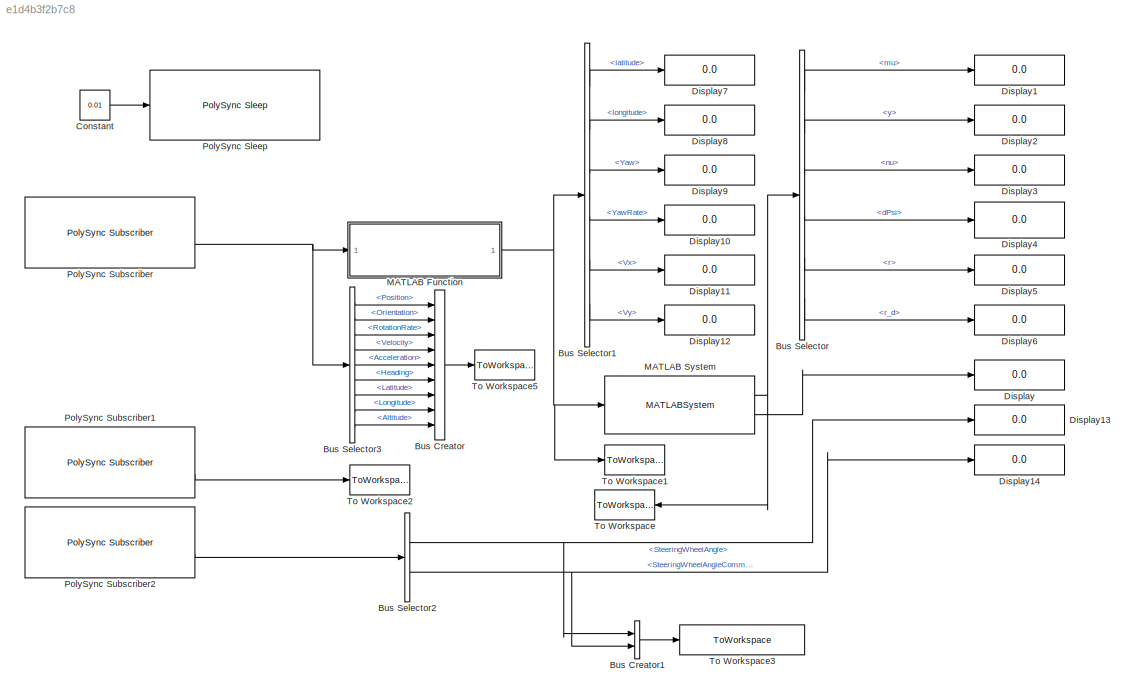
MODEL slx_e1d4b3f2b7c8
KIND model
CONFIG AbsTol = auto
CONFIG EnableMultiTasking = off
CONFIG FixedStep = 0.01
CONFIG MaxStep = auto
CONFIG MinStep = auto
CONFIG PostLoadFcn = bus_definitions;
CONFIG RelTol = 1e-3
CONFIG SampleTimeConstraint = Unconstrained
CONFIG Solver = FixedStepDiscrete
CONFIG SolverName = FixedStepDiscrete
CONFIG StartTime = 0.0
CONFIG StopFcn = save(['data/run-', num2str(now), '.mat'], 'gpsdata', 'rawdata', 'lk_acc_state', 'ba_message', 'steering_report')
CONFIG StopTime = 300
BLOCK [BusCreator] Bus Creator
  DisplayOption = bar
  InheritFromInputs = on
  Inputs = 9
  Ports = [9, 1]
BLOCK [BusCreator] Bus Creator1
  DisplayOption = bar
  InheritFromInputs = on
  Inputs = 2
  Ports = [2, 1]
BLOCK [BusSelector] Bus Selector
  OutputAsBus = off
  OutputSignals = mu,y,nu,dPsi,r,r_d
  Ports = [1, 6]
BLOCK [BusSelector] Bus Selector1
  OutputAsBus = off
  OutputSignals = latitude,longitude,Yaw,YawRate,Vx,Vy
  Ports = [1, 6]
BLOCK [BusSelector] Bus Selector2
  OutputAsBus = off
  OutputSignals = SteeringWheelAngle,SteeringWheelAngleCommand
  Ports = [1, 2]
BLOCK [BusSelector] Bus Selector3
  OutputAsBus = off
  OutputSignals = Position,Orientation,RotationRate,Velocity,Acceleration,Heading,Latitude,Longitude,Altitude
  Ports = [1, 9]
BLOCK [Constant] Constant
  Value = 0.01
BLOCK [Display] Display
  Decimation = 1
  Ports = [1]
BLOCK [Display] Display1
  Decimation = 1
  Ports = [1]
BLOCK [Display] Display10
  Decimation = 1
  Ports = [1]
BLOCK [Display] Display11
  Decimation = 1
  Ports = [1]
BLOCK [Display] Display12
  Decimation = 1
  Ports = [1]
BLOCK [Display] Display13
  Decimation = 1
  Ports = [1]
BLOCK [Display] Display14
  Decimation = 1
  Ports = [1]
BLOCK [Display] Display2
  Decimation = 1
  Ports = [1]
BLOCK [Display] Display3
  Decimation = 1
  Ports = [1]
BLOCK [Display] Display4
  Decimation = 1
  Ports = [1]
BLOCK [Display] Display5
  Decimation = 1
  Ports = [1]
BLOCK [Display] Display6
  Decimation = 1
  Ports = [1]
BLOCK [Display] Display7
  Decimation = 1
  Ports = [1]
BLOCK [Display] Display8
  Decimation = 1
  Ports = [1]
BLOCK [Display] Display9
  Decimation = 1
  Ports = [1]
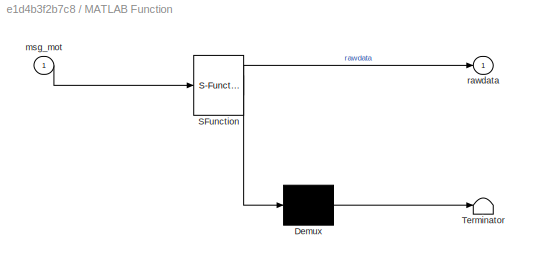
BLOCK [SubSystem] MATLAB Function
  ErrorFcn = Stateflow.Translate.translate
  PermitHierarchicalResolution = ExplicitOnly
  Ports = [1, 1]
  RequestExecContextInheritance = off
  SFBlockType = MATLAB Function
  TreatAsAtomicUnit = on
  Variant = off
BLOCK [Demux] MATLAB Function/ Demux 
  Outputs = 1
  Ports = [1, 1]
BLOCK [S-Function] MATLAB Function/ SFunction 
  EnableBusSupport = on
  FunctionName = sf_sfun
  PortCounts = [1 2]
  Ports = [1, 2]
  SFcnIsStateOwnerBlock = off
  SFunctionDeploymentMode = off
  Tag = Stateflow S-Function monitor 2
BLOCK [Terminator] MATLAB Function/ Terminator 
BLOCK [Inport] MATLAB Function/msg_mot
  IconDisplay = Port number
BLOCK [Outport] MATLAB Function/rawdata
  IconDisplay = Port number
BLOCK [MATLABSystem] MATLAB System
  MaskDisplay = disp('road');\nport_label('input',1,'data');\nport_label('output',1,'lk_acc_state');\nport_label('output',2,'road_left');
  MaskType = road
  N_interp = 10
  N_path = 3
  Ports = [1, 2]
  SimulateUsing = Code generation
  System = road
  circular = 0
  dt = 0.1
  h0 = 0
  lat0 = 42.30095833
  long0 = -83.69758056
  pathfile = <userpath>/mkz/mcity/mcity_outer2.ascii
BLOCK [Reference] PolySync Sleep  REF=PolySyncLibrary/PolySync Sleep
  Ports = [1]
  SourceBlock = PolySyncLibrary/PolySync Sleep
  SourceProductName = PolySync
BLOCK [Reference] PolySync Subscriber  REF=PolySyncLibrary/PolySync Subscriber
  Ports = [0, 2]
  SourceBlock = PolySyncLibrary/PolySync Subscriber
  SourceProductName = PolySync
  SourceType = polysync.Subscriber
BLOCK [Reference] PolySync Subscriber1  REF=PolySyncLibrary/PolySync Subscriber
  Ports = [0, 2]
  SourceBlock = PolySyncLibrary/PolySync Subscriber
  SourceProductName = PolySync
  SourceType = polysync.Subscriber
BLOCK [Reference] PolySync Subscriber2  REF=PolySyncLibrary/PolySync Subscriber
  Ports = [0, 2]
  SourceBlock = PolySyncLibrary/PolySync Subscriber
  SourceProductName = PolySync
  SourceType = polysync.Subscriber
BLOCK [ToWorkspace] To Workspace
  FixptAsFi = on
  MaxDataPoints = inf
  Ports = [1]
  SampleTime = -1
  Save2DSignal = 3-D array (concatenate along third dimension)
  SaveFormat = Timeseries
  VariableName = lk_acc_state
BLOCK [ToWorkspace] To Workspace1
  FixptAsFi = on
  MaxDataPoints = inf
  Ports = [1]
  SampleTime = -1
  Save2DSignal = 3-D array (concatenate along third dimension)
  SaveFormat = Timeseries
  VariableName = rawdata
BLOCK [ToWorkspace] To Workspace2
  FixptAsFi = on
  MaxDataPoints = inf
  Ports = [1]
  SampleTime = -1
  Save2DSignal = 3-D array (concatenate along third dimension)
  SaveFormat = Timeseries
  VariableName = ba_message
BLOCK [ToWorkspace] To Workspace3
  FixptAsFi = on
  MaxDataPoints = inf
  Ports = [1]
  SampleTime = -1
  Save2DSignal = 3-D array (concatenate along third dimension)
  SaveFormat = Timeseries
  VariableName = steering_report
BLOCK [ToWorkspace] To Workspace5
  FixptAsFi = on
  MaxDataPoints = inf
  Ports = [1]
  SampleTime = -1
  Save2DSignal = 3-D array (concatenate along third dimension)
  SaveFormat = Timeseries
  VariableName = gpsdata
LINE Bus Creator1:1 -> To Workspace3:1
LINE Bus Creator:1 -> To Workspace5:1
LINE Bus Selector1:1 -> Display7:1
LINE Bus Selector1:2 -> Display8:1
LINE Bus Selector1:3 -> Display9:1
LINE Bus Selector1:4 -> Display10:1
LINE Bus Selector1:5 -> Display11:1
LINE Bus Selector1:6 -> Display12:1
NET Bus Selector2:1 -> Bus Creator1:1, Display13:1
NET Bus Selector2:2 -> Bus Creator1:2, Display14:1
LINE Bus Selector3:1 -> Bus Creator:1
LINE Bus Selector3:2 -> Bus Creator:2
LINE Bus Selector3:3 -> Bus Creator:3
LINE Bus Selector3:4 -> Bus Creator:4
LINE Bus Selector3:5 -> Bus Creator:5
LINE Bus Selector3:6 -> Bus Creator:6
LINE Bus Selector3:7 -> Bus Creator:7
LINE Bus Selector3:8 -> Bus Creator:8
LINE Bus Selector3:9 -> Bus Creator:9
LINE Bus Selector:1 -> Display1:1
LINE Bus Selector:2 -> Display2:1
LINE Bus Selector:3 -> Display3:1
LINE Bus Selector:4 -> Display4:1
LINE Bus Selector:5 -> Display5:1
LINE Bus Selector:6 -> Display6:1
LINE Constant:1 -> PolySync Sleep:1
NET MATLAB Function:1 -> Bus Selector1:1, MATLAB System:1, To Workspace1:1
NET MATLAB System:1 -> Bus Selector:1, To Workspace:1
LINE MATLAB System:2 -> Display:1
LINE PolySync Subscriber1:2 -> To Workspace2:1
LINE PolySync Subscriber2:2 -> Bus Selector2:1
NET PolySync Subscriber:2 -> Bus Selector3:1, MATLAB Function:1
note: NET lines group one-source signal fan-out (src -> all destinations, sorted); 1:1 wires keep LINE
CHART MATLAB Function states=1 transitions=1
  STATE_LABEL 'eML_blk_kernel()'
  STATE_LABEL 'SCRIPT:\n%% gps_to_rawdata:\nfunction rawdata  = gd(msg_mot)\n    rawdata = get_data(msg_mot);'
